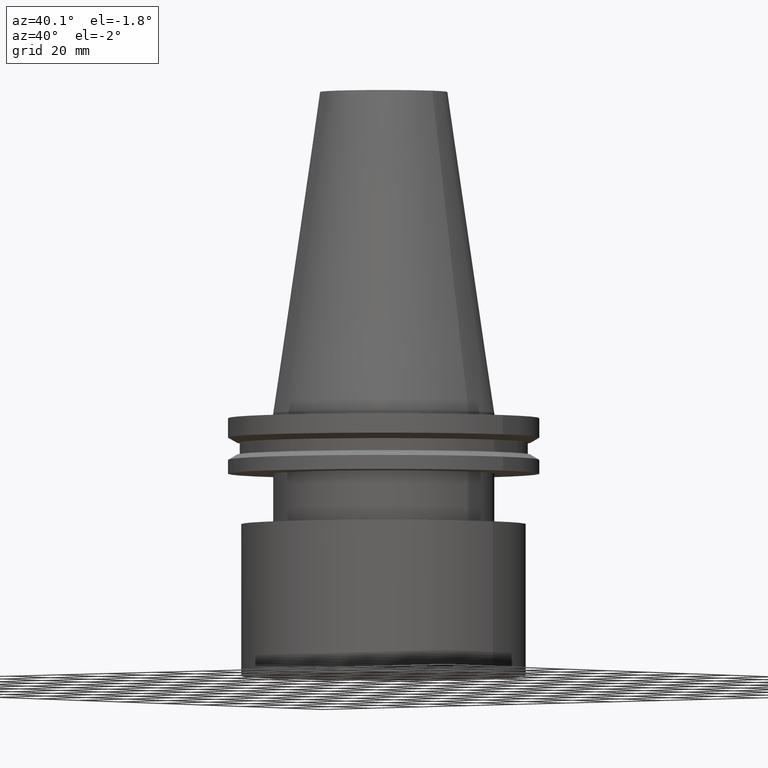
[diagram: clean part render]
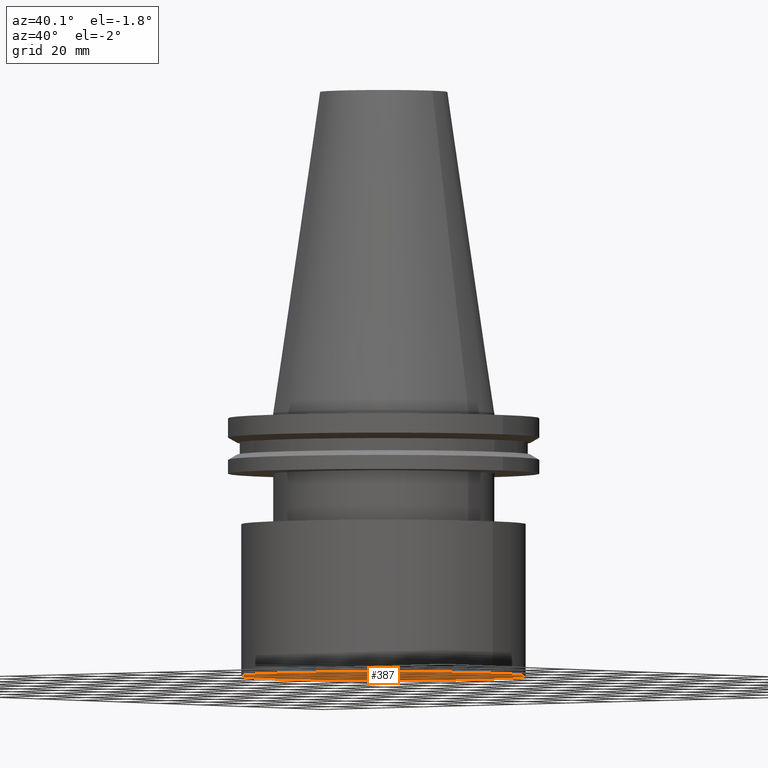
[diagram: same view with one face highlighted and labeled with its STEP entity id]
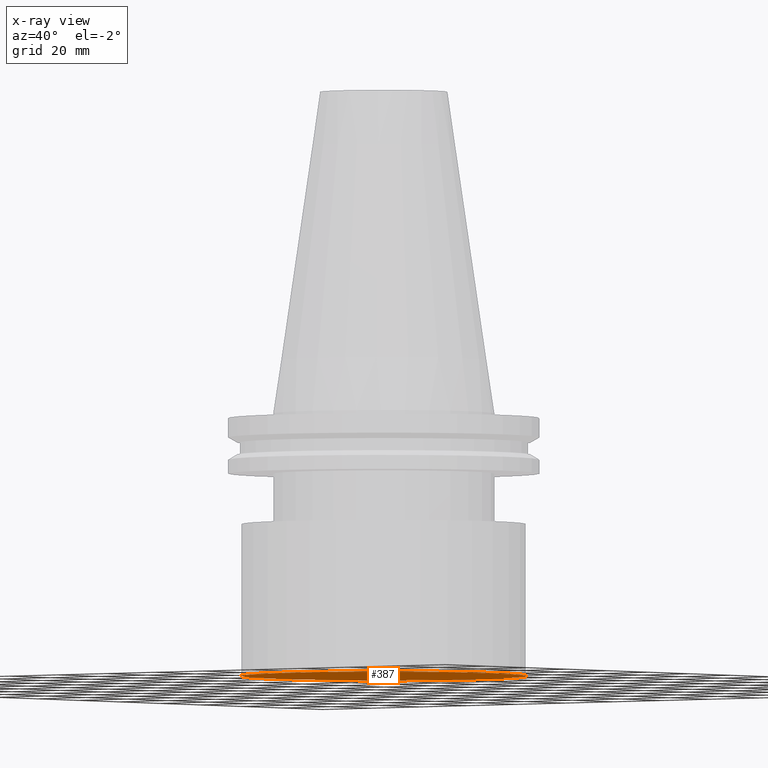
[diagram: x-ray of the same camera — body ghosted, the highlighted face saturated]
A machine part, auxiliary view. The second image highlights one B-rep face of the part: STEP entity #387.
The next image is the same camera in x-ray: the body ghosted, the highlighted face saturated — about 0% of this face is hidden behind the body in this view.
In plain terms, the highlighted planar face has unit normal (0, -0, 1).
Its self-contained STEP definition (entity closure, byte-faithful):
#11 = CIRCLE ( 'NONE', #64, 45.00000000000000000 ) ;
#47 = AXIS2_PLACEMENT_3D ( 'NONE', #189, #157, #182 ) ;
#64 = AXIS2_PLACEMENT_3D ( 'NONE', #308, #334, #126 ) ;
#66 = PLANE ( 'NONE',  #47 ) ;
#70 = VERTEX_POINT ( 'NONE', #143 ) ;
#126 = DIRECTION ( 'NONE',  ( 1.000000000000000000, 0.000000000000000000, 0.000000000000000000 ) ) ;
#143 = CARTESIAN_POINT ( 'NONE',  ( 45.00000000000000000, 0.000000000000000000, -83.00000000000000000 ) ) ;
#157 = DIRECTION ( 'NONE',  ( 0.000000000000000000, -0.000000000000000000, 1.000000000000000000 ) ) ;
#182 = DIRECTION ( 'NONE',  ( 1.000000000000000000, 0.000000000000000000, 0.000000000000000000 ) ) ;
#189 = CARTESIAN_POINT ( 'NONE',  ( 0.000000000000000000, 45.00000000000000000, -83.00000000000000000 ) ) ;
#196 = EDGE_LOOP ( 'NONE', ( #198 ) ) ;
#198 = ORIENTED_EDGE ( 'NONE', *, *, #292, .F. ) ;
#292 = EDGE_CURVE ( 'NONE', #70, #70, #11, .T. ) ;
#308 = CARTESIAN_POINT ( 'NONE',  ( 0.000000000000000000, 0.000000000000000000, -83.00000000000000000 ) ) ;
#334 = DIRECTION ( 'NONE',  ( -0.000000000000000000, -0.000000000000000000, 1.000000000000000000 ) ) ;
#336 = FACE_OUTER_BOUND ( 'NONE', #196, .T. ) ;
#387 = ADVANCED_FACE ( 'NONE', ( #336 ), #66, .F. ) ;